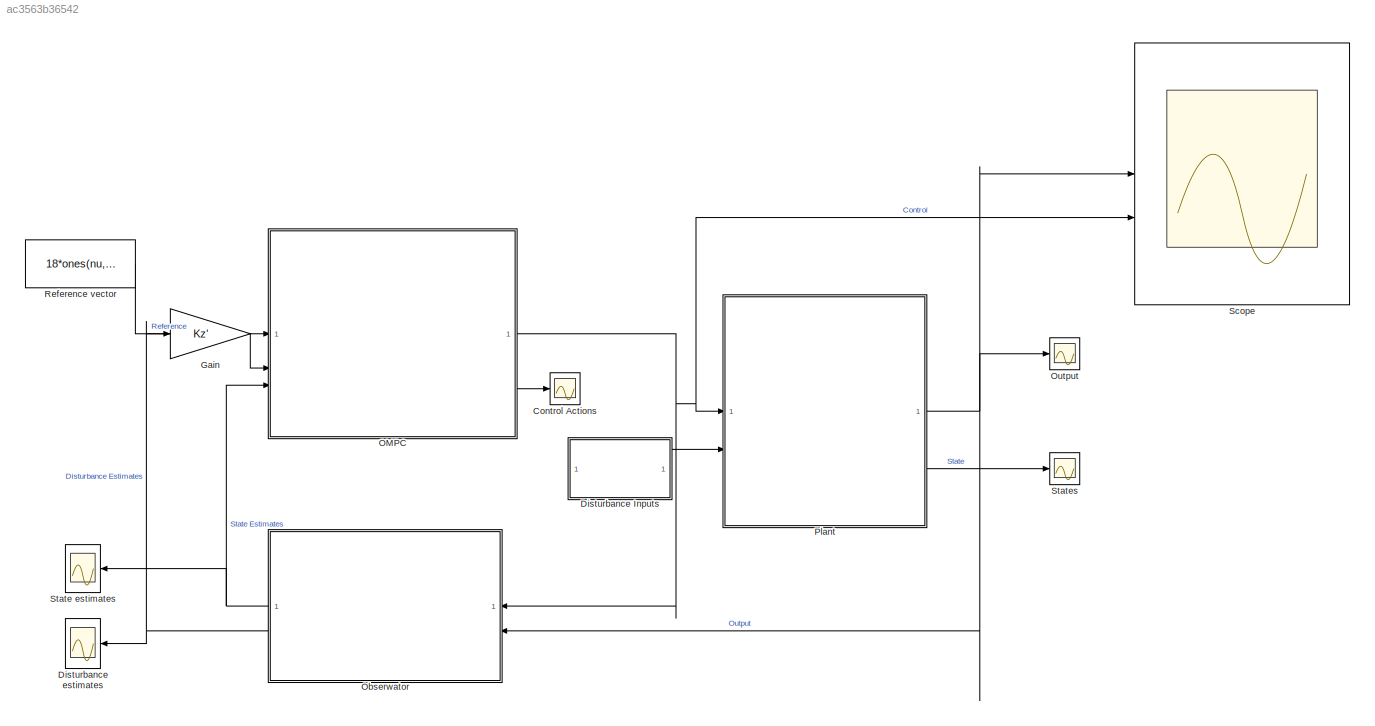
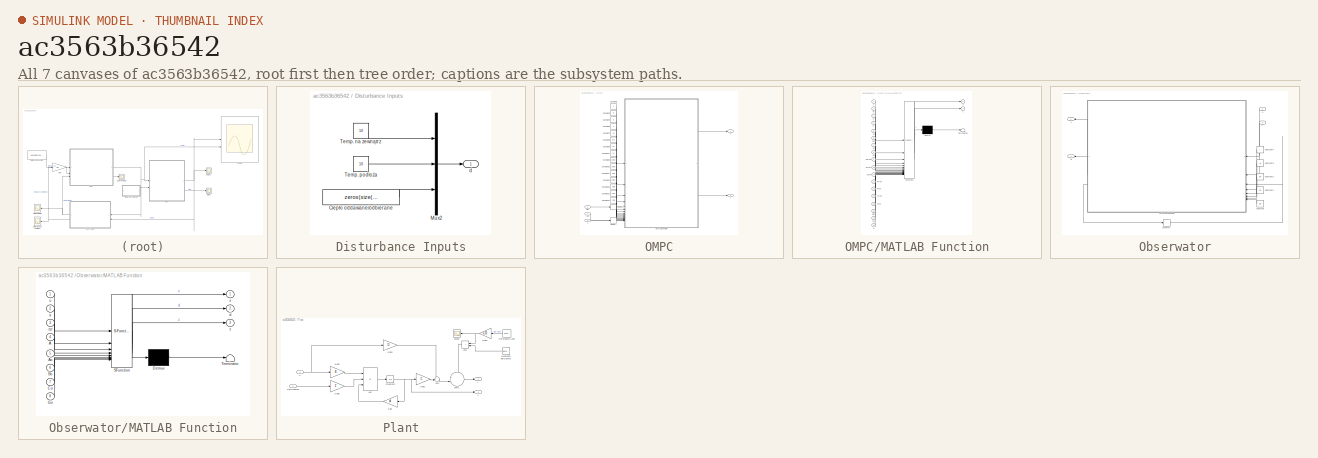
[diagram: thumbnail index - all 7 canvases of the model, root first then tree order]
MODEL slx_ac3563b36542
KIND model
CONFIG AbsTol = auto
CONFIG EnableMultiTasking = off
CONFIG FixedStep = Ts
CONFIG MaxStep = auto
CONFIG MinStep = auto
CONFIG RelTol = 1e-3
CONFIG SampleTimeConstraint = Unconstrained
CONFIG SolverName = ode5
CONFIG StartTime = 0.0
CONFIG StopTime = time
BLOCK [Scope] Control Actions
  Floating = off
  NumInputPorts = 1
  ScopeSpecificationString = Simulink.scopes.TimeScopeBlockCfg('CurrentConfiguration', extmgr.ConfigurationSet(extmgr.Configuration('Core','General UI',true,'FigureColor',[1 1 1]),extmgr.Configuration('Core','Source UI',true),extmgr.Configuration('Sources','WiredSimulink',true,'DataLoggingVariableName','ScopeData1'),extmgr.Configuration('Visuals','Time Domain',true,'SerializedDisplays',{struct('MinYLimReal','-7.36091','MaxYLi...<+1680ch>
BLOCK [SubSystem] Disturbance Inputs
BLOCK [Constant] Disturbance Inputs/Ciepło oddawane//odbierane
  Value = zeros(size(Z,2)-2,1);
BLOCK [Mux] Disturbance Inputs/Mux2
  DisplayOption = bar
  Inputs = 3
BLOCK [Constant] Disturbance Inputs/Temp. na zewnątrz
  Value = 10
BLOCK [Constant] Disturbance Inputs/Temp. podłoża
  Value = 10
BLOCK [Outport] Disturbance Inputs/d
BLOCK [Scope] Disturbance estimates
  Floating = off
  NumInputPorts = 1
  ScopeSpecificationString = Simulink.scopes.TimeScopeBlockCfg('CurrentConfiguration', extmgr.ConfigurationSet(extmgr.Configuration('Core','General UI',true),extmgr.Configuration('Core','Source UI',true),extmgr.Configuration('Sources','WiredSimulink',true,'DataLoggingVariableName','ScopeData3'),extmgr.Configuration('Visuals','Time Domain',true,'SerializedDisplays',{struct('MinYLimReal','-0.16098','MaxYLimReal','0.10923','YLab...<+1462ch>
BLOCK [Gain] Gain
  Gain = Kz'
  Multiplication = Matrix(K*u) (u vector)
BLOCK [SubSystem] OMPC
BLOCK [Constant] OMPC/Constant1
  Value = xmax
  VectorParams1D = off
BLOCK [Constant] OMPC/Constant10
  Value = umax
  VectorParams1D = off
BLOCK [Constant] OMPC/Constant11
  Value = umin
  VectorParams1D = off
BLOCK [Constant] OMPC/Constant12
  Value = ymax
BLOCK [Constant] OMPC/Constant13
  Value = ymin
BLOCK [Constant] OMPC/Constant14
  Value = nc
BLOCK [Constant] OMPC/Constant15
  Value = xmin
BLOCK [Constant] OMPC/Constant2
  Value = A
BLOCK [Constant] OMPC/Constant3
  Value = B
  VectorParams1D = off
BLOCK [Constant] OMPC/Constant4
  Value = C
  VectorParams1D = off
BLOCK [Constant] OMPC/Constant5
  Value = npred
BLOCK [Constant] OMPC/Constant6
  Value = K
  VectorParams1D = off
BLOCK [Constant] OMPC/Constant7
  Value = Sx
  VectorParams1D = off
BLOCK [Constant] OMPC/Constant8
  Value = Sxc
  VectorParams1D = off
BLOCK [Constant] OMPC/Constant9
  Value = Sc
  VectorParams1D = off
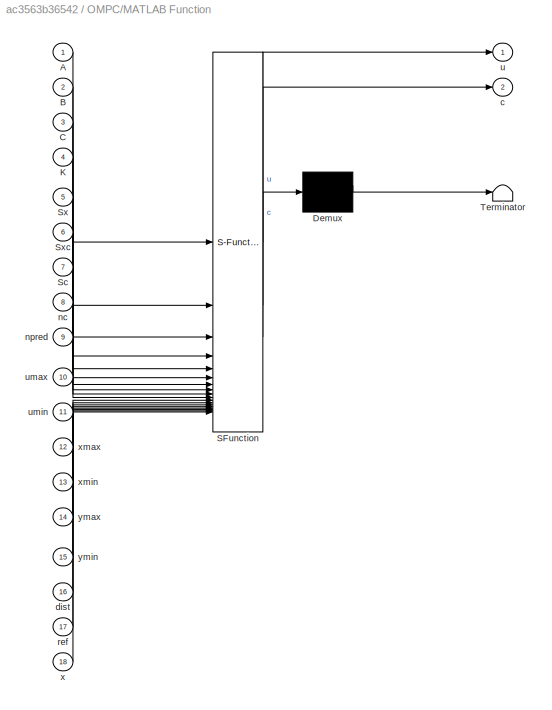
BLOCK [SubSystem] OMPC/MATLAB Function
  ErrorFcn = Stateflow.Translate.translate
  LibrarySourceBlock = simulink/User-Defined\nFunctions/MATLAB Function
  PermitHierarchicalResolution = ExplicitOnly
  SFBlockType = MATLAB Function
  TreatAsAtomicUnit = on
BLOCK [Demux] OMPC/MATLAB Function/ Demux 
  Outputs = 1
BLOCK [S-Function] OMPC/MATLAB Function/ SFunction 
  EnableBusSupport = on
  FunctionName = sf_sfun
  PortCounts = [18 3]
  SFcnIsStateOwnerBlock = off
  SFunctionDeploymentMode = off
  Tag = Stateflow S-Function 2
BLOCK [Terminator] OMPC/MATLAB Function/ Terminator 
BLOCK [Inport] OMPC/MATLAB Function/A
BLOCK [Inport] OMPC/MATLAB Function/B
  Port = 2
BLOCK [Inport] OMPC/MATLAB Function/C
  Port = 3
BLOCK [Inport] OMPC/MATLAB Function/K
  Port = 4
BLOCK [Inport] OMPC/MATLAB Function/Sc
  Port = 7
BLOCK [Inport] OMPC/MATLAB Function/Sx
  Port = 5
BLOCK [Inport] OMPC/MATLAB Function/Sxc
  Port = 6
BLOCK [Outport] OMPC/MATLAB Function/c
  Port = 2
BLOCK [Inport] OMPC/MATLAB Function/dist
  Port = 16
BLOCK [Inport] OMPC/MATLAB Function/nc
  Port = 8
BLOCK [Inport] OMPC/MATLAB Function/npred
  Port = 9
BLOCK [Inport] OMPC/MATLAB Function/ref
  Port = 17
BLOCK [Outport] OMPC/MATLAB Function/u
BLOCK [Inport] OMPC/MATLAB Function/umax
  Port = 10
BLOCK [Inport] OMPC/MATLAB Function/umin
  Port = 11
BLOCK [Inport] OMPC/MATLAB Function/x
  Port = 18
BLOCK [Inport] OMPC/MATLAB Function/xmax
  Port = 12
BLOCK [Inport] OMPC/MATLAB Function/xmin
  Port = 13
BLOCK [Inport] OMPC/MATLAB Function/ymax
  Port = 14
BLOCK [Inport] OMPC/MATLAB Function/ymin
  Port = 15
BLOCK [Memory] OMPC/Memory
  InitialCondition = x0
BLOCK [Memory] OMPC/Memory2
  InitialCondition = zeros(size(C,1),1)
BLOCK [Outport] OMPC/c
  Port = 2
BLOCK [Inport] OMPC/dist
  Port = 2
BLOCK [Inport] OMPC/ref
BLOCK [Outport] OMPC/u
BLOCK [Inport] OMPC/x
  Port = 3
BLOCK [SubSystem] Obserwator
BLOCK [Constant] Obserwator/Constant
  NameLocation = top
  Value = Go
  VectorParams1D = off
BLOCK [Constant] Obserwator/Constant1
  NameLocation = top
  Value = Co
  VectorParams1D = off
BLOCK [Constant] Obserwator/Constant2
  NameLocation = top
  Value = Bo
  VectorParams1D = off
BLOCK [Constant] Obserwator/Constant3
  NameLocation = top
  Value = Ao
  VectorParams1D = off
BLOCK [Constant] Obserwator/Constant4
  NameLocation = top
  Value = A
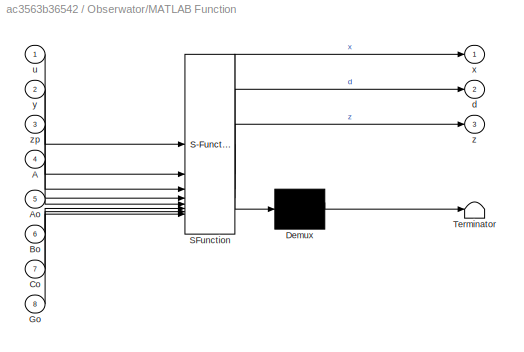
BLOCK [SubSystem] Obserwator/MATLAB Function
  ErrorFcn = Stateflow.Translate.translate
  LibrarySourceBlock = simulink/User-Defined\nFunctions/MATLAB Function
  NameLocation = top
  PermitHierarchicalResolution = ExplicitOnly
  SFBlockType = MATLAB Function
  TreatAsAtomicUnit = on
BLOCK [Demux] Obserwator/MATLAB Function/ Demux 
  Outputs = 1
BLOCK [S-Function] Obserwator/MATLAB Function/ SFunction 
  EnableBusSupport = on
  FunctionName = sf_sfun
  PortCounts = [8 4]
  SFcnIsStateOwnerBlock = off
  SFunctionDeploymentMode = off
  Tag = Stateflow S-Function 1
BLOCK [Terminator] Obserwator/MATLAB Function/ Terminator 
BLOCK [Inport] Obserwator/MATLAB Function/A
  Port = 4
BLOCK [Inport] Obserwator/MATLAB Function/Ao
  Port = 5
BLOCK [Inport] Obserwator/MATLAB Function/Bo
  Port = 6
BLOCK [Inport] Obserwator/MATLAB Function/Co
  Port = 7
BLOCK [Inport] Obserwator/MATLAB Function/Go
  Port = 8
BLOCK [Outport] Obserwator/MATLAB Function/d
  Port = 2
BLOCK [Inport] Obserwator/MATLAB Function/u
BLOCK [Outport] Obserwator/MATLAB Function/x
BLOCK [Inport] Obserwator/MATLAB Function/y
  Port = 2
BLOCK [Outport] Obserwator/MATLAB Function/z
  Port = 3
BLOCK [Inport] Obserwator/MATLAB Function/zp
  Port = 3
BLOCK [Memory] Obserwator/Memory
  InitialCondition = [x0;zeros(size(Z,2),1)]
BLOCK [Outport] Obserwator/d
  NameLocation = top
  Port = 2
BLOCK [Inport] Obserwator/u
BLOCK [Outport] Obserwator/x
  NameLocation = top
BLOCK [Inport] Obserwator/y
  Port = 2
BLOCK [Scope] Output
  Floating = off
  NumInputPorts = 1
  ScopeSpecificationString = Simulink.scopes.TimeScopeBlockCfg('CurrentConfiguration', extmgr.ConfigurationSet(extmgr.Configuration('Core','General UI',true,'FigureColor',[1 1 1]),extmgr.Configuration('Core','Source UI',true),extmgr.Configuration('Sources','WiredSimulink',true,'DataLoggingVariableName','ScopeData2'),extmgr.Configuration('Visuals','Time Domain',true,'SerializedDisplays',{struct('MinYLimReal','8.79146','MaxYLim...<+2029ch>
BLOCK [SubSystem] Plant
BLOCK [Sum] Plant/Add
  IconShape = rectangular
  Inputs = +++
BLOCK [Sum] Plant/Add1
  Commented = on
  IconShape = rectangular
  NameLocation = top
BLOCK [Reference] Plant/Disturbance Load  REF=eeStairGenerator/Stair Generator
  Commented = on
  LibrarySourceBlock = ee_sl_lib/General Control/Stair Generator
  NameLocation = top
  SourceBlock = eeStairGenerator/Stair Generator
  SourceType = Stair Generator
BLOCK [Inport] Plant/Disturbances
  Port = 2
BLOCK [Gain] Plant/Gain
  Gain = A
  Multiplication = Matrix(K*u) (u vector)
  NameLocation = top
BLOCK [Gain] Plant/Gain1
  Gain = C
  Multiplication = Matrix(K*u) (u vector)
BLOCK [Gain] Plant/Gain2
  Gain = B
  Multiplication = Matrix(K*u) (u vector)
BLOCK [Gain] Plant/Gain3
  Gain = D
  Multiplication = Matrix(K*u)
BLOCK [Gain] Plant/Gain4
  Commented = on
  Gain = 0.25
  NameLocation = top
BLOCK [Gain] Plant/Gain5
  Gain = Z
  Multiplication = Matrix(K*u) (u vector)
BLOCK [Integrator] Plant/Integrator
  InitialCondition = x0
BLOCK [Reference] Plant/Measuring disturbance  REF=simulink/Sources/Band-Limited
White Noise
  Commented = on
  SourceBlock = simulink/Sources/Band-Limited\nWhite Noise
  SourceType = Band-Limited White Noise.
BLOCK [Scope] Plant/Scope
  Commented = on
  Floating = off
  NameLocation = top
  NumInputPorts = 1
  ScopeSpecificationString = Simulink.scopes.TimeScopeBlockCfg('CurrentConfiguration', extmgr.ConfigurationSet(extmgr.Configuration('Core','General UI',true),extmgr.Configuration('Core','Source UI',true),extmgr.Configuration('Sources','WiredSimulink',true,'DataLoggingVariableName','ScopeData1'),extmgr.Configuration('Visuals','Time Domain',true,'SerializedDisplays',{struct('MinYLimReal','0.875','MaxYLimReal','2.125','YLabelRea...<+1381ch>
BLOCK [Sum] Plant/Sum
  Inputs = ++|
BLOCK [Sum] Plant/Sum1
  Inputs = ++|
BLOCK [Inport] Plant/u
BLOCK [Outport] Plant/x
  Port = 2
BLOCK [Outport] Plant/y
BLOCK [Constant] Reference vector
  Value = 18*ones(nu,1)
BLOCK [Scope] Scope
  Floating = off
  NumInputPorts = 2
  ScopeSpecificationString = Simulink.scopes.TimeScopeBlockCfg('CurrentConfiguration', extmgr.ConfigurationSet(extmgr.Configuration('Core','General UI',true,'FigureColor',[1 1 1]),extmgr.Configuration('Core','Source UI',true),extmgr.Configuration('Sources','WiredSimulink',true,'DataLoggingVariableName','ScopeData1'),extmgr.Configuration('Visuals','Time Domain',true,'SerializedDisplays',{struct('MinYLimReal','15.75755','MaxYLi...<+2658ch>
BLOCK [Scope] State estimates
  Floating = off
  NumInputPorts = 1
  ScopeSpecificationString = Simulink.scopes.TimeScopeBlockCfg('CurrentConfiguration', extmgr.ConfigurationSet(extmgr.Configuration('Core','General UI',true),extmgr.Configuration('Core','Source UI',true),extmgr.Configuration('Sources','WiredSimulink',true,'DataLoggingVariableName','ScopeData4'),extmgr.Configuration('Visuals','Time Domain',true,'SerializedDisplays',{struct('MinYLimReal','-6.39125','MaxYLimReal','57.61188','YLa...<+1997ch>
BLOCK [Scope] States
  Floating = off
  NumInputPorts = 1
  ScopeSpecificationString = Simulink.scopes.TimeScopeBlockCfg('CurrentConfiguration', extmgr.ConfigurationSet(extmgr.Configuration('Core','General UI',true,'FigureColor',[1 1 1]),extmgr.Configuration('Core','Source UI',true),extmgr.Configuration('Sources','WiredSimulink',true,'DataLoggingVariableName','ScopeData2'),extmgr.Configuration('Visuals','Time Domain',true,'SerializedDisplays',{struct('MinYLimReal','18.85284','MaxYLi...<+4155ch>
LINE Disturbance Inputs/Ciepło oddawane//odbierane:1 -> Disturbance Inputs/Mux2:3
LINE Disturbance Inputs/Mux2:1 -> Disturbance Inputs/d:1
LINE Disturbance Inputs/Temp. na zewnątrz:1 -> Disturbance Inputs/Mux2:1
LINE Disturbance Inputs/Temp. podłoża:1 -> Disturbance Inputs/Mux2:2
LINE Disturbance Inputs:1 -> Plant:2
LINE Gain:1 -> OMPC:2
LINE OMPC/Constant10:1 -> OMPC/MATLAB Function:10
LINE OMPC/Constant11:1 -> OMPC/MATLAB Function:11
LINE OMPC/Constant12:1 -> OMPC/MATLAB Function:14
LINE OMPC/Constant13:1 -> OMPC/MATLAB Function:15
LINE OMPC/Constant14:1 -> OMPC/MATLAB Function:8
LINE OMPC/Constant15:1 -> OMPC/MATLAB Function:13
LINE OMPC/Constant1:1 -> OMPC/MATLAB Function:12
LINE OMPC/Constant2:1 -> OMPC/MATLAB Function:1
LINE OMPC/Constant3:1 -> OMPC/MATLAB Function:2
LINE OMPC/Constant4:1 -> OMPC/MATLAB Function:3
LINE OMPC/Constant5:1 -> OMPC/MATLAB Function:9
LINE OMPC/Constant6:1 -> OMPC/MATLAB Function:4
LINE OMPC/Constant7:1 -> OMPC/MATLAB Function:5
LINE OMPC/Constant8:1 -> OMPC/MATLAB Function:6
LINE OMPC/Constant9:1 -> OMPC/MATLAB Function:7
LINE OMPC/MATLAB Function:1 -> OMPC/u:1
LINE OMPC/MATLAB Function:2 -> OMPC/c:1
LINE OMPC/Memory2:1 -> OMPC/MATLAB Function:16
LINE OMPC/Memory:1 -> OMPC/MATLAB Function:18
LINE OMPC/dist:1 -> OMPC/Memory2:1
LINE OMPC/ref:1 -> OMPC/MATLAB Function:17
LINE OMPC/x:1 -> OMPC/Memory:1
NET OMPC:1 -> Obserwator:1, Plant:1, Scope:2
LINE OMPC:2 -> Control Actions:1
LINE Obserwator/Constant1:1 -> Obserwator/MATLAB Function:7
LINE Obserwator/Constant2:1 -> Obserwator/MATLAB Function:6
LINE Obserwator/Constant3:1 -> Obserwator/MATLAB Function:5
LINE Obserwator/Constant4:1 -> Obserwator/MATLAB Function:4
LINE Obserwator/Constant:1 -> Obserwator/MATLAB Function:8
LINE Obserwator/MATLAB Function:1 -> Obserwator/x:1
LINE Obserwator/MATLAB Function:2 -> Obserwator/d:1
LINE Obserwator/MATLAB Function:3 -> Obserwator/Memory:1
LINE Obserwator/Memory:1 -> Obserwator/MATLAB Function:3
LINE Obserwator/u:1 -> Obserwator/MATLAB Function:1
LINE Obserwator/y:1 -> Obserwator/MATLAB Function:2
NET Obserwator:1 -> OMPC:3, State estimates:1
NET Obserwator:2 -> Disturbance estimates:1, Gain:1
LINE Plant/Add1:1 -> Plant/Sum1:1
LINE Plant/Add:1 -> Plant/Integrator:1
LINE Plant/Disturbance Load:1 -> Plant/Gain4:1
LINE Plant/Disturbances:1 -> Plant/Gain5:1
LINE Plant/Gain1:1 -> Plant/Sum:2
LINE Plant/Gain2:1 -> Plant/Add:1
LINE Plant/Gain3:1 -> Plant/Sum:1
NET Plant/Gain4:1 -> Plant/Add1:1, Plant/Scope:1
LINE Plant/Gain5:1 -> Plant/Add:2
LINE Plant/Gain:1 -> Plant/Add:3
NET Plant/Integrator:1 -> Plant/Gain1:1, Plant/Gain:1, Plant/x:1
LINE Plant/Measuring disturbance:1 -> Plant/Add1:2
LINE Plant/Sum1:1 -> Plant/y:1
LINE Plant/Sum:1 -> Plant/Sum1:2
NET Plant/u:1 -> Plant/Gain2:1, Plant/Gain3:1
NET Plant:1 -> Obserwator:2, Output:1, Scope:1
LINE Plant:2 -> States:1
LINE Reference vector:1 -> OMPC:1
note: NET lines group one-source signal fan-out (src -> all destinations, sorted); 1:1 wires keep LINE
CHART Obserwator/MATLAB Function states=1 transitions=1
  STATE_LABEL 'eML_blk_kernel()'
  STATE_LABEL 'SCRIPT:\nfunction [x,d,z] = fcn(u,y,zp,A,Ao,Bo,Co,Go)\n\nnx = size(A,1);\nz = Ao*zp + Bo*u + Go*(y - Co*zp);\nx = z(1:nx,:);\nd = z(nx+1:end,:);'
CHART OMPC/MATLAB Function states=1 transitions=1
  STATE_LABEL 'eML_blk_kernel()'
  STATE_LABEL 'SCRIPT:\nfunction [u,c] = fcn(A,B,C,K,Sx,Sxc,Sc,nc,npred,umax,umin,xmax,xmin,ymax,ymin,dist,ref,x)\n\n% [u,c] = ompc_law_unconstrained(A,B,C,K,Sx,Sxc,Sc,ref,dist,x);\n[u,ctrl] = ompc_law(A,B,C,K,Sx,Sxc,Sc,umax,umin,xmax,xmin,ymax,ymin,nc,npred,ref,dist,x);\nc = ctrl(1:size(B,2),:);'
CHART  states=0 transitions=0
CHART  states=0 transitions=0
